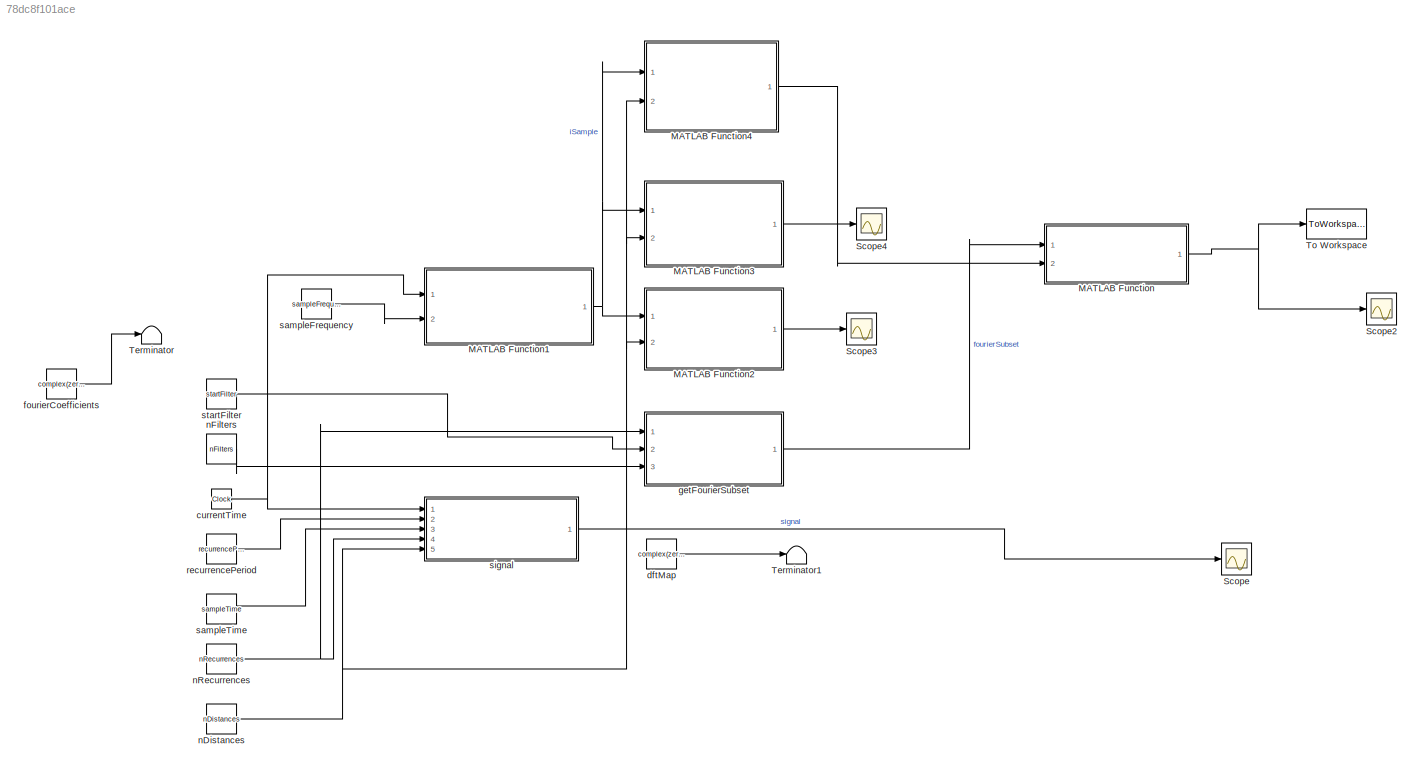
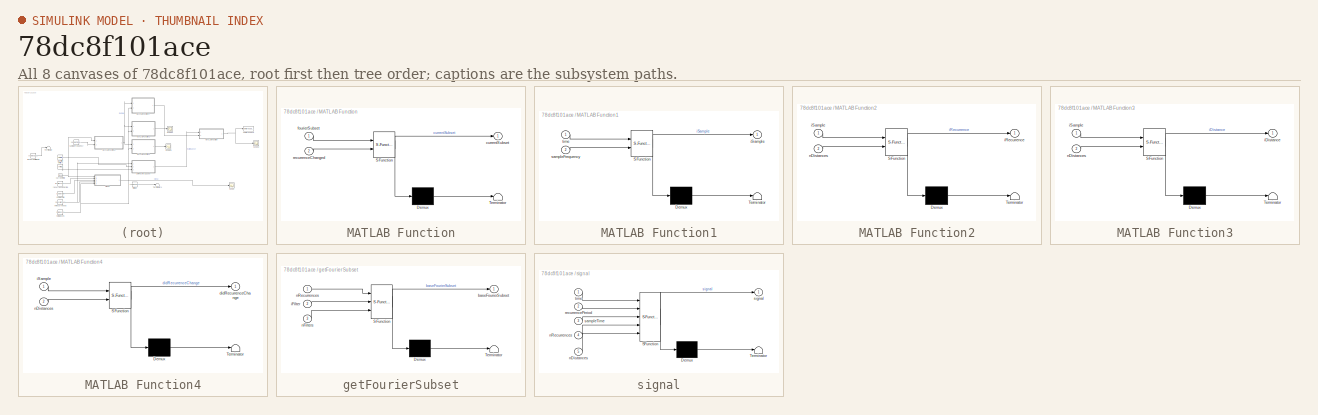
[diagram: thumbnail index - all 8 canvases of the model, root first then tree order]
MODEL slx_78dc8f101ace
KIND model
CONFIG AbsTol = auto
CONFIG EnableMultiTasking = off
CONFIG FixedStep = sampleTime
CONFIG InitFcn = hdlcoderdft_testbench_init\n
CONFIG MaxStep = auto
CONFIG MinStep = auto
CONFIG PostLoadFcn = hdlcoderdft_testbench_init\n
CONFIG RelTol = 1e-3
CONFIG SampleTimeConstraint = Unconstrained
CONFIG Solver = FixedStepDiscrete
CONFIG SolverName = FixedStepDiscrete
CONFIG StartTime = 0.0
CONFIG StopTime = analysisDuration
BLOCK [SubSystem] MATLAB Function
  ErrorFcn = Stateflow.Translate.translate
  PermitHierarchicalResolution = ExplicitOnly
  Ports = [2, 1]
  RequestExecContextInheritance = off
  SFBlockType = MATLAB Function
  TreatAsAtomicUnit = on
  Variant = off
BLOCK [Demux] MATLAB Function/ Demux 
  Outputs = 1
  Ports = [1, 1]
BLOCK [S-Function] MATLAB Function/ SFunction 
  EnableBusSupport = on
  FunctionName = sf_sfun
  PortCounts = [2 2]
  Ports = [2, 2]
  SFcnIsStateOwnerBlock = off
  SFunctionDeploymentMode = off
  Tag = Stateflow S-Function hdlcoderdft_testbench 3
BLOCK [Terminator] MATLAB Function/ Terminator 
BLOCK [Outport] MATLAB Function/currentSubset
  IconDisplay = Port number
BLOCK [Inport] MATLAB Function/fourierSubset
  IconDisplay = Port number
BLOCK [Inport] MATLAB Function/recurrenceChanged
  IconDisplay = Port number
  Port = 2
BLOCK [SubSystem] MATLAB Function1
  ErrorFcn = Stateflow.Translate.translate
  PermitHierarchicalResolution = ExplicitOnly
  Ports = [2, 1]
  RequestExecContextInheritance = off
  SFBlockType = MATLAB Function
  TreatAsAtomicUnit = on
  Variant = off
BLOCK [Demux] MATLAB Function1/ Demux 
  Outputs = 1
  Ports = [1, 1]
BLOCK [S-Function] MATLAB Function1/ SFunction 
  EnableBusSupport = on
  FunctionName = sf_sfun
  PortCounts = [2 2]
  Ports = [2, 2]
  SFcnIsStateOwnerBlock = off
  SFunctionDeploymentMode = off
  Tag = Stateflow S-Function hdlcoderdft_testbench 4
BLOCK [Terminator] MATLAB Function1/ Terminator 
BLOCK [Outport] MATLAB Function1/iSample
  IconDisplay = Port number
BLOCK [Inport] MATLAB Function1/sampleFrequency
  IconDisplay = Port number
  Port = 2
BLOCK [Inport] MATLAB Function1/time
  IconDisplay = Port number
BLOCK [SubSystem] MATLAB Function2
  ErrorFcn = Stateflow.Translate.translate
  PermitHierarchicalResolution = ExplicitOnly
  Ports = [2, 1]
  RequestExecContextInheritance = off
  SFBlockType = MATLAB Function
  TreatAsAtomicUnit = on
  Variant = off
BLOCK [Demux] MATLAB Function2/ Demux 
  Outputs = 1
  Ports = [1, 1]
BLOCK [S-Function] MATLAB Function2/ SFunction 
  EnableBusSupport = on
  FunctionName = sf_sfun
  PortCounts = [2 2]
  Ports = [2, 2]
  SFcnIsStateOwnerBlock = off
  SFunctionDeploymentMode = off
  Tag = Stateflow S-Function hdlcoderdft_testbench 5
BLOCK [Terminator] MATLAB Function2/ Terminator 
BLOCK [Outport] MATLAB Function2/iRecurrence
  IconDisplay = Port number
BLOCK [Inport] MATLAB Function2/iSample
  IconDisplay = Port number
BLOCK [Inport] MATLAB Function2/nDistances
  IconDisplay = Port number
  Port = 2
BLOCK [SubSystem] MATLAB Function3
  ErrorFcn = Stateflow.Translate.translate
  PermitHierarchicalResolution = ExplicitOnly
  Ports = [2, 1]
  RequestExecContextInheritance = off
  SFBlockType = MATLAB Function
  TreatAsAtomicUnit = on
  Variant = off
BLOCK [Demux] MATLAB Function3/ Demux 
  Outputs = 1
  Ports = [1, 1]
BLOCK [S-Function] MATLAB Function3/ SFunction 
  EnableBusSupport = on
  FunctionName = sf_sfun
  PortCounts = [2 2]
  Ports = [2, 2]
  SFcnIsStateOwnerBlock = off
  SFunctionDeploymentMode = off
  Tag = Stateflow S-Function hdlcoderdft_testbench 6
BLOCK [Terminator] MATLAB Function3/ Terminator 
BLOCK [Outport] MATLAB Function3/iDistance
  IconDisplay = Port number
BLOCK [Inport] MATLAB Function3/iSample
  IconDisplay = Port number
BLOCK [Inport] MATLAB Function3/nDistances
  IconDisplay = Port number
  Port = 2
BLOCK [SubSystem] MATLAB Function4
  ErrorFcn = Stateflow.Translate.translate
  PermitHierarchicalResolution = ExplicitOnly
  Ports = [2, 1]
  RequestExecContextInheritance = off
  SFBlockType = MATLAB Function
  TreatAsAtomicUnit = on
  Variant = off
BLOCK [Demux] MATLAB Function4/ Demux 
  Outputs = 1
  Ports = [1, 1]
BLOCK [S-Function] MATLAB Function4/ SFunction 
  EnableBusSupport = on
  FunctionName = sf_sfun
  PortCounts = [2 2]
  Ports = [2, 2]
  SFcnIsStateOwnerBlock = off
  SFunctionDeploymentMode = off
  Tag = Stateflow S-Function hdlcoderdft_testbench 7
BLOCK [Terminator] MATLAB Function4/ Terminator 
BLOCK [Outport] MATLAB Function4/didRecurrenceChange
  IconDisplay = Port number
BLOCK [Inport] MATLAB Function4/iSample
  IconDisplay = Port number
BLOCK [Inport] MATLAB Function4/nDistances
  IconDisplay = Port number
  Port = 2
BLOCK [Scope] Scope
  NumInputPorts = 1
  Ports = [1]
  ScopeSpecificationString = Simulink.scopes.TimeScopeBlockCfg('CurrentConfiguration', extmgr.ConfigurationSet(extmgr.Configuration('Core','General UI',true),extmgr.Configuration('Core','Source UI',true),extmgr.Configuration('Sources','WiredSimulink',true),extmgr.Configuration('Visuals','Time Domain',true,'SerializedDisplays',{struct('MinYLimReal','-1.25','MaxYLimReal','1.25','YLabelReal','','MinYLimMag','0.00000','MaxYLimMag...<+1329ch>
BLOCK [Scope] Scope2
  NumInputPorts = 1
  Ports = [1]
  ScopeSpecificationString = Simulink.scopes.TimeScopeBlockCfg('CurrentConfiguration', extmgr.ConfigurationSet(extmgr.Configuration('Core','General UI',true),extmgr.Configuration('Core','Source UI',true),extmgr.Configuration('Sources','WiredSimulink',true,'DataLoggingVariableName','ScopeData1'),extmgr.Configuration('Visuals','Time Domain',true,'SerializedDisplays',{struct('MinYLimReal','-0.125','MaxYLimReal','1.125','YLabelRe...<+1709ch>
BLOCK [Scope] Scope3
  NumInputPorts = 1
  Ports = [1]
  ScopeSpecificationString = Simulink.scopes.TimeScopeBlockCfg('CurrentConfiguration', extmgr.ConfigurationSet(extmgr.Configuration('Core','General UI',true),extmgr.Configuration('Core','Source UI',true),extmgr.Configuration('Sources','WiredSimulink',true,'DataLoggingVariableName','ScopeData1'),extmgr.Configuration('Visuals','Time Domain',true,'SerializedDisplays',{struct('MinYLimReal','-0.375','MaxYLimReal','3.375','YLabelRe...<+1363ch>
BLOCK [Scope] Scope4
  NumInputPorts = 1
  Ports = [1]
  ScopeSpecificationString = Simulink.scopes.TimeScopeBlockCfg('CurrentConfiguration', extmgr.ConfigurationSet(extmgr.Configuration('Core','General UI',true),extmgr.Configuration('Core','Source UI',true),extmgr.Configuration('Sources','WiredSimulink',true,'DataLoggingVariableName','ScopeData2'),extmgr.Configuration('Visuals','Time Domain',true,'SerializedDisplays',{struct('MinYLimReal','-0.375','MaxYLimReal','3.375','YLabelRe...<+1363ch>
BLOCK [Terminator] Terminator
BLOCK [Terminator] Terminator1
BLOCK [ToWorkspace] To Workspace
  MaxDataPoints = inf
  Ports = [1]
  SampleTime = -1
  Save2DSignal = 3-D array (concatenate along third dimension)
  SaveFormat = Structure With Time
  VariableName = fourierSubsets
BLOCK [Clock] currentTime
BLOCK [Constant] dftMap
  Value = complex(zeros(nDistances, nFilters))
BLOCK [Constant] fourierCoefficients
  OutDataTypeStr = double
  Value = complex(zeros(nDistances, nFilters))
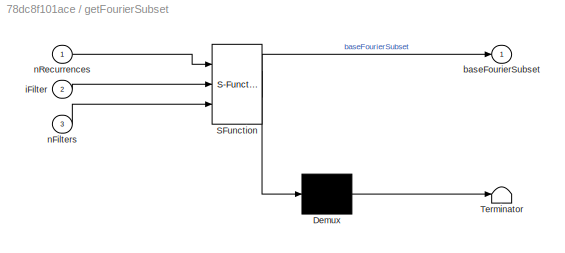
BLOCK [SubSystem] getFourierSubset
  ErrorFcn = Stateflow.Translate.translate
  PermitHierarchicalResolution = ExplicitOnly
  Ports = [3, 1]
  RequestExecContextInheritance = off
  SFBlockType = MATLAB Function
  TreatAsAtomicUnit = on
  Variant = off
BLOCK [Demux] getFourierSubset/ Demux 
  Outputs = 1
  Ports = [1, 1]
BLOCK [S-Function] getFourierSubset/ SFunction 
  EnableBusSupport = on
  FunctionName = sf_sfun
  PortCounts = [3 2]
  Ports = [3, 2]
  SFcnIsStateOwnerBlock = off
  SFunctionDeploymentMode = off
  Tag = Stateflow S-Function hdlcoderdft_testbench 1
BLOCK [Terminator] getFourierSubset/ Terminator 
BLOCK [Outport] getFourierSubset/baseFourierSubset
  IconDisplay = Port number
BLOCK [Inport] getFourierSubset/iFilter
  IconDisplay = Port number
  Port = 2
BLOCK [Inport] getFourierSubset/nFilters
  IconDisplay = Port number
  Port = 3
BLOCK [Inport] getFourierSubset/nRecurrences
  IconDisplay = Port number
BLOCK [Constant] nDistances
  OutDataTypeStr = uint16
  Value = nDistances
BLOCK [Constant] nFilters
  Value = nFilters
BLOCK [Constant] nRecurrences
  OutDataTypeStr = uint16
  Value = nRecurrences
BLOCK [Constant] recurrencePeriod
  OutDataTypeStr = double
  Value = recurrencePeriod
BLOCK [Constant] sampleFrequency
  Value = sampleFrequency
BLOCK [Constant] sampleTime
  OutDataTypeStr = double
  Value = sampleTime
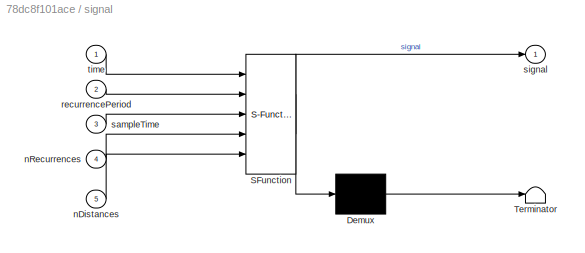
BLOCK [SubSystem] signal
  ErrorFcn = Stateflow.Translate.translate
  PermitHierarchicalResolution = ExplicitOnly
  Ports = [5, 1]
  RequestExecContextInheritance = off
  SFBlockType = MATLAB Function
  TreatAsAtomicUnit = on
  Variant = off
BLOCK [Demux] signal/ Demux 
  Outputs = 1
  Ports = [1, 1]
BLOCK [S-Function] signal/ SFunction 
  EnableBusSupport = on
  FunctionName = sf_sfun
  PortCounts = [5 2]
  Ports = [5, 2]
  SFcnIsStateOwnerBlock = off
  SFunctionDeploymentMode = off
  Tag = Stateflow S-Function hdlcoderdft_testbench 2
BLOCK [Terminator] signal/ Terminator 
BLOCK [Inport] signal/nDistances
  IconDisplay = Port number
  Port = 5
BLOCK [Inport] signal/nRecurrences
  IconDisplay = Port number
  Port = 4
BLOCK [Inport] signal/recurrencePeriod
  IconDisplay = Port number
  Port = 2
BLOCK [Inport] signal/sampleTime
  IconDisplay = Port number
  Port = 3
BLOCK [Outport] signal/signal
  IconDisplay = Port number
BLOCK [Inport] signal/time
  IconDisplay = Port number
BLOCK [Constant] startFilter
  Value = startFilter
NET MATLAB Function1:1 -> MATLAB Function2:1, MATLAB Function3:1, MATLAB Function4:1
LINE MATLAB Function2:1 -> Scope3:1
LINE MATLAB Function3:1 -> Scope4:1
LINE MATLAB Function4:1 -> MATLAB Function:2
NET MATLAB Function:1 -> Scope2:1, To Workspace:1
NET currentTime:1 -> MATLAB Function1:1, signal:1
LINE dftMap:1 -> Terminator1:1
LINE fourierCoefficients:1 -> Terminator:1
LINE getFourierSubset:1 -> MATLAB Function:1
NET nDistances:1 -> MATLAB Function2:2, MATLAB Function3:2, MATLAB Function4:2, signal:5
LINE nFilters:1 -> getFourierSubset:3
NET nRecurrences:1 -> getFourierSubset:1, signal:4
LINE recurrencePeriod:1 -> signal:2
LINE sampleFrequency:1 -> MATLAB Function1:2
LINE sampleTime:1 -> signal:3
LINE signal:1 -> Scope:1
LINE startFilter:1 -> getFourierSubset:2
note: NET lines group one-source signal fan-out (src -> all destinations, sorted); 1:1 wires keep LINE
CHART getFourierSubset states=1 transitions=1
  STATE_LABEL 'eML_blk_kernel()'
  STATE_LABEL 'SCRIPT:\nfunction baseFourierSubset = baseFourierSubset(nRecurrences, iFilter, nFilters)\n    persistent fourierSubset\n    if(isempty(fourierSubset))\n        fourierSubset = getBaseFourierSubset(double(nRecurrences), iFilter, nFilters)\n    end\n    baseFourierSubset = fourierSubset\nend\n'
CHART signal states=1 transitions=1
  STATE_LABEL 'eML_blk_kernel()'
  STATE_LABEL 'SCRIPT:\nfunction signal = signal(time, recurrencePeriod, sampleTime, nRecurrences, nDistances)\n    iRecurrence = double(getRecurrenceId(time, recurrencePeriod))\n    iDoor       = double(getDoorId(time, sampleTime, recurrencePeriod, nDistances))\n    signal      = complex(exp(2j * pi * iRecurrence * iDoor / double(nRecurrences)))\nend\n'
CHART MATLAB Function states=1 transitions=1
  STATE_LABEL 'eML_blk_kernel()'
  STATE_LABEL 'SCRIPT:\nfunction currentSubset = recursiveMultiply(fourierSubset, recurrenceChanged)\n    persistent previousSubset\n    if(isempty(previousSubset))\n        previousSubset = conj(fourierSubset)\n    end\n    if recurrenceChanged\n        previousSubset = previousSubset .* fourierSubset\n    end\n    currentSubset  = previousSubset\nend\n'
CHART MATLAB Function1 states=1 transitions=1
  STATE_LABEL 'eML_blk_kernel()'
  STATE_LABEL 'SCRIPT:\nfunction iSample = sampleId(time, sampleFrequency)\n    iSample = uint16(getSampleId(time, sampleFrequency))\nend\n'
CHART MATLAB Function2 states=1 transitions=1
  STATE_LABEL 'eML_blk_kernel()'
  STATE_LABEL 'SCRIPT:\nfunction iRecurrence = recurrenceId(iSample, nDistances)\n    iRecurrence = getRecurrenceId2(iSample, nDistances)\nend\n'
CHART MATLAB Function3 states=1 transitions=1
  STATE_LABEL 'eML_blk_kernel()'
  STATE_LABEL 'SCRIPT:\nfunction iDistance = distanceId(iSample, nDistances)\n    iDistance = getDistanceId(iSample, nDistances)\nend\n'
CHART MATLAB Function4 states=1 transitions=1
  STATE_LABEL 'eML_blk_kernel()'
  STATE_LABEL 'SCRIPT:\nfunction didRecurrenceChange = recurrenceDidChange(iSample, nDistances)\n    didRecurrenceChange = recurrenceChanged(iSample, nDistances)\nend\n'
